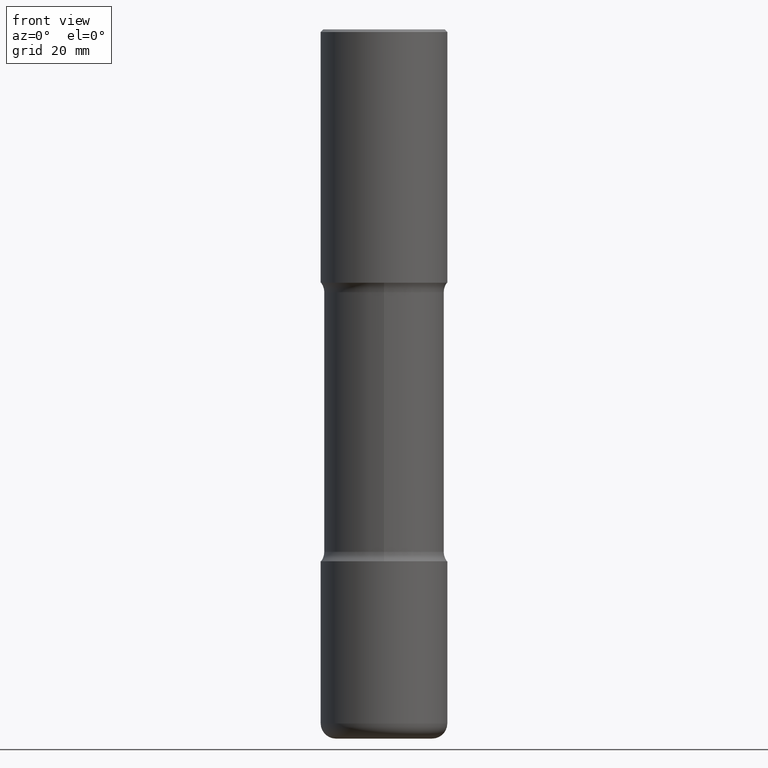
[diagram: clean part render]
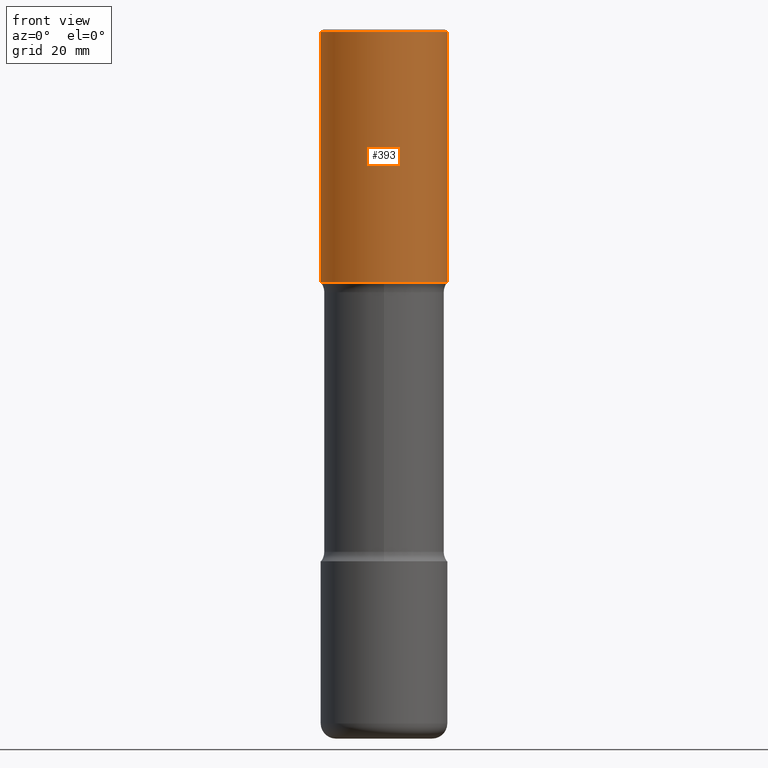
[diagram: same view with one face highlighted and labeled with its STEP entity id]
A machine part, front view. The second image highlights one B-rep face of the part: STEP entity #393.
In plain terms, the highlighted cylindrical surface (partial cylindrical patch) has radius 12.5006 mm, axis along (-0, 0, 1).
Its self-contained STEP definition (entity closure, byte-faithful):
#45 = DIRECTION ( 'NONE',  ( 1.000000000000000000, -6.982962677686267499E-15, 0.000000000000000000 ) ) ;
#48 = DIRECTION ( 'NONE',  ( -2.445468806185136877E-29, 3.491481338843145188E-15, 1.000000000000000000 ) ) ;
#69 = AXIS2_PLACEMENT_3D ( 'NONE', #428, #125, #520 ) ;
#83 = CARTESIAN_POINT ( 'NONE',  ( -0.4921500000000003650, 2.553075289854047247E-17, -1.968499999999999472 ) ) ;
#88 = EDGE_CURVE ( 'NONE', #345, #180, #280, .T. ) ;
#125 = DIRECTION ( 'NONE',  ( -2.445468806185136597E-29, 3.491481338843145583E-15, 1.000000000000000000 ) ) ;
#127 = VECTOR ( 'NONE', #48, 39.37007874015748143 ) ;
#132 = ORIENTED_EDGE ( 'NONE', *, *, #458, .T. ) ;
#152 = VERTEX_POINT ( 'NONE', #83 ) ;
#163 = EDGE_CURVE ( 'NONE', #152, #345, #413, .T. ) ;
#165 = DIRECTION ( 'NONE',  ( -2.445468806185136877E-29, 3.491481338843145188E-15, 1.000000000000000000 ) ) ;
#173 = LINE ( 'NONE', #286, #552 ) ;
#180 = VERTEX_POINT ( 'NONE', #424 ) ;
#215 = EDGE_CURVE ( 'NONE', #313, #180, #173, .T. ) ;
#248 = CYLINDRICAL_SURFACE ( 'NONE', #69, 0.4921500000000002539 ) ;
#254 = FACE_OUTER_BOUND ( 'NONE', #297, .T. ) ;
#280 = CIRCLE ( 'NONE', #546, 0.4921500000000000874 ) ;
#284 = CARTESIAN_POINT ( 'NONE',  ( -0.4921500000000002539, 3.496936074043334869E-15, -2.420853904668952910E-29 ) ) ;
#286 = CARTESIAN_POINT ( 'NONE',  ( 0.4921500000000002539, -3.436665081823297749E-15, 2.399810400207971004E-29 ) ) ;
#297 = EDGE_LOOP ( 'NONE', ( #359, #132, #344, #499 ) ) ;
#302 = AXIS2_PLACEMENT_3D ( 'NONE', #519, #553, #45 ) ;
#313 = VERTEX_POINT ( 'NONE', #490 ) ;
#344 = ORIENTED_EDGE ( 'NONE', *, *, #215, .T. ) ;
#345 = VERTEX_POINT ( 'NONE', #451 ) ;
#359 = ORIENTED_EDGE ( 'NONE', *, *, #163, .F. ) ;
#393 = ADVANCED_FACE ( 'NONE', ( #254 ), #248, .T. ) ;
#413 = LINE ( 'NONE', #284, #127 ) ;
#424 = CARTESIAN_POINT ( 'NONE',  ( 0.4921500000000000874, -3.446223716380123532E-15, -0.02000000000000010103 ) ) ;
#428 = CARTESIAN_POINT ( 'NONE',  ( 0.000000000000000000, 0.000000000000000000, 0.000000000000000000 ) ) ;
#451 = CARTESIAN_POINT ( 'NONE',  ( -0.4921500000000000874, 3.366835455046433267E-15, -0.02000000000000010103 ) ) ;
#454 = DIRECTION ( 'NONE',  ( 1.000000000000000000, -6.982962677686265922E-15, 0.000000000000000000 ) ) ;
#458 = EDGE_CURVE ( 'NONE', #152, #313, #460, .T. ) ;
#460 = CIRCLE ( 'NONE', #302, 0.4921500000000003094 ) ;
#490 = CARTESIAN_POINT ( 'NONE',  ( 0.4921500000000003094, -1.030964609733602906E-14, -1.968499999999999472 ) ) ;
#499 = ORIENTED_EDGE ( 'NONE', *, *, #88, .F. ) ;
#503 = CARTESIAN_POINT ( 'NONE',  ( 4.890937612370298557E-31, -6.982962677686327354E-17, -0.02000000000000010103 ) ) ;
#509 = DIRECTION ( 'NONE',  ( -2.445468806185136597E-29, 3.491481338843145583E-15, 1.000000000000000000 ) ) ;
#519 = CARTESIAN_POINT ( 'NONE',  ( 4.813905344975440153E-29, -6.872981015512730130E-15, -1.968499999999999472 ) ) ;
#520 = DIRECTION ( 'NONE',  ( 1.000000000000000000, -6.982962677686266711E-15, 4.876176775795935793E-29 ) ) ;
#546 = AXIS2_PLACEMENT_3D ( 'NONE', #503, #509, #454 ) ;
#552 = VECTOR ( 'NONE', #165, 39.37007874015748143 ) ;
#553 = DIRECTION ( 'NONE',  ( -2.445468806185136597E-29, 3.491481338843145583E-15, 1.000000000000000000 ) ) ;